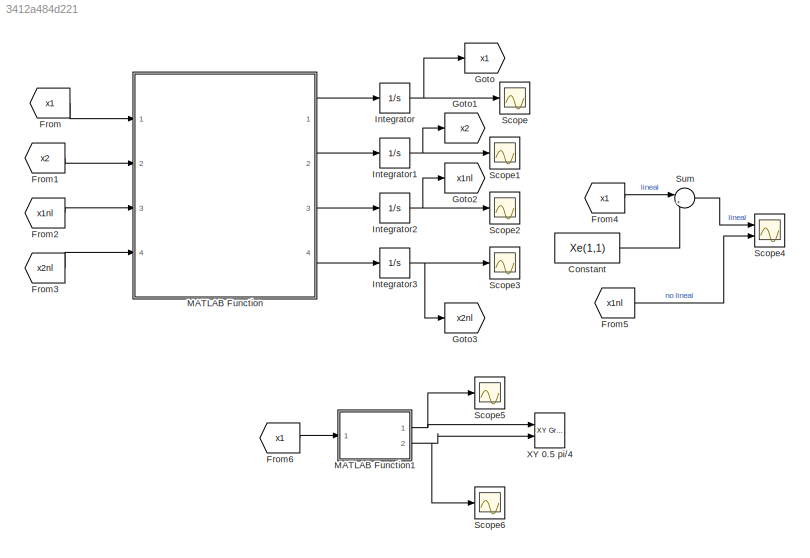
MODEL slx_3412a484d221
KIND model
CONFIG AbsTol = auto
CONFIG EnableMultiTasking = off
CONFIG FixedStep = auto
CONFIG InitFcn = simulacion
CONFIG MaxStep = 1e-2
CONFIG MinStep = auto
CONFIG RelTol = 1e-3
CONFIG SampleTimeConstraint = Unconstrained
CONFIG Solver = VariableStepAuto
CONFIG SolverName = VariableStepAuto
CONFIG StartTime = 0.0
CONFIG StopTime = 4
BLOCK [Constant] Constant
  Value = Xe(1,1)
BLOCK [From] From
  GotoTag = x1
BLOCK [From] From1
  GotoTag = x2
BLOCK [From] From2
  GotoTag = x1nl
BLOCK [From] From3
  GotoTag = x2nl
BLOCK [From] From4
  GotoTag = x1
BLOCK [From] From5
  GotoTag = x1nl
BLOCK [From] From6
  GotoTag = x1
BLOCK [Goto] Goto
  GotoTag = x1
BLOCK [Goto] Goto1
  GotoTag = x2
BLOCK [Goto] Goto2
  GotoTag = x1nl
BLOCK [Goto] Goto3
  GotoTag = x2nl
BLOCK [Integrator] Integrator
  InitialCondition = Xinil(1,1)
  Ports = [1, 1]
BLOCK [Integrator] Integrator1
  InitialCondition = Xinil(1,2)
  Ports = [1, 1]
BLOCK [Integrator] Integrator2
  InitialCondition = Xini(1,1)
  Ports = [1, 1]
BLOCK [Integrator] Integrator3
  InitialCondition = Xini(1,2)
  Ports = [1, 1]
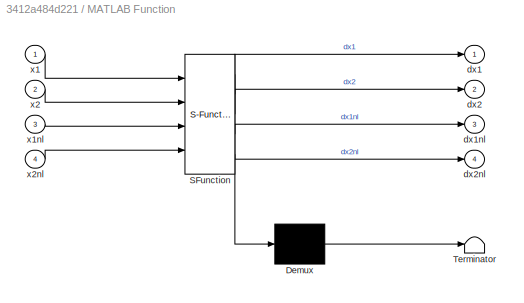
BLOCK [SubSystem] MATLAB Function
  ErrorFcn = Stateflow.Translate.translate
  PermitHierarchicalResolution = ExplicitOnly
  Ports = [4, 4]
  RequestExecContextInheritance = off
  SFBlockType = MATLAB Function
  TreatAsAtomicUnit = on
BLOCK [Demux] MATLAB Function/ Demux 
  Outputs = 1
  Ports = [1, 1]
BLOCK [S-Function] MATLAB Function/ SFunction 
  EnableBusSupport = on
  FunctionName = sf_sfun
  PortCounts = [4 5]
  Ports = [4, 5]
  SFcnIsStateOwnerBlock = off
  SFunctionDeploymentMode = off
  Tag = Stateflow S-Function ejemplo_pendulo 2
BLOCK [Terminator] MATLAB Function/ Terminator 
BLOCK [Outport] MATLAB Function/dx1
  IconDisplay = Port number
BLOCK [Outport] MATLAB Function/dx1nl
  IconDisplay = Port number
  Port = 3
BLOCK [Outport] MATLAB Function/dx2
  IconDisplay = Port number
  Port = 2
BLOCK [Outport] MATLAB Function/dx2nl
  IconDisplay = Port number
  Port = 4
BLOCK [Inport] MATLAB Function/x1
  IconDisplay = Port number
BLOCK [Inport] MATLAB Function/x1nl
  IconDisplay = Port number
  Port = 3
BLOCK [Inport] MATLAB Function/x2
  IconDisplay = Port number
  Port = 2
BLOCK [Inport] MATLAB Function/x2nl
  IconDisplay = Port number
  Port = 4
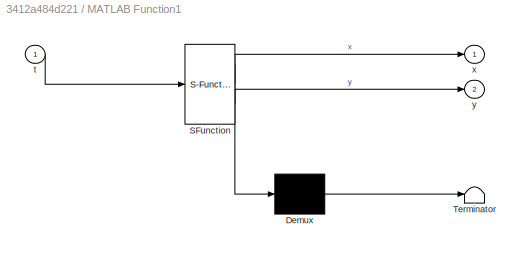
BLOCK [SubSystem] MATLAB Function1
  ErrorFcn = Stateflow.Translate.translate
  PermitHierarchicalResolution = ExplicitOnly
  Ports = [1, 2]
  RequestExecContextInheritance = off
  SFBlockType = MATLAB Function
  TreatAsAtomicUnit = on
BLOCK [Demux] MATLAB Function1/ Demux 
  Outputs = 1
  Ports = [1, 1]
BLOCK [S-Function] MATLAB Function1/ SFunction 
  EnableBusSupport = on
  FunctionName = sf_sfun
  PortCounts = [1 3]
  Ports = [1, 3]
  SFcnIsStateOwnerBlock = off
  SFunctionDeploymentMode = off
  Tag = Stateflow S-Function ejemplo_pendulo 1
BLOCK [Terminator] MATLAB Function1/ Terminator 
BLOCK [Inport] MATLAB Function1/t
  IconDisplay = Port number
BLOCK [Outport] MATLAB Function1/x
  IconDisplay = Port number
BLOCK [Outport] MATLAB Function1/y
  IconDisplay = Port number
  Port = 2
BLOCK [Scope] Scope
  Floating = off
  NumInputPorts = 1
  Ports = [1]
  ScopeSpecificationString = Simulink.scopes.TimeScopeBlockCfg('CurrentConfiguration', extmgr.ConfigurationSet(extmgr.Configuration('Core','General UI',true),extmgr.Configuration('Core','Source UI',true),extmgr.Configuration('Sources','WiredSimulink',true),extmgr.Configuration('Visuals','Time Domain',true,'SerializedDisplays',{struct('MinYLimReal','-0.49085','MaxYLimReal','0.49086','YLabelReal','','MinYLimMag','0.00000','MaxY...<+1386ch>
BLOCK [Scope] Scope1
  Floating = off
  NumInputPorts = 1
  Ports = [1]
  ScopeSpecificationString = Simulink.scopes.TimeScopeBlockCfg('CurrentConfiguration', extmgr.ConfigurationSet(extmgr.Configuration('Core','General UI',true),extmgr.Configuration('Core','Source UI',true),extmgr.Configuration('Sources','WiredSimulink',true,'DataLoggingVariableName','ScopeData1'),extmgr.Configuration('Visuals','Time Domain',true,'SerializedDisplays',{struct('MinYLimReal','-1.53659','MaxYLimReal','1.53655','YLab...<+1370ch>
BLOCK [Scope] Scope2
  Floating = off
  NumInputPorts = 1
  Ports = [1]
  ScopeSpecificationString = Simulink.scopes.TimeScopeBlockCfg('CurrentConfiguration', extmgr.ConfigurationSet(extmgr.Configuration('Core','General UI',true),extmgr.Configuration('Core','Source UI',true),extmgr.Configuration('Sources','WiredSimulink',true,'DataLoggingVariableName','ScopeData2'),extmgr.Configuration('Visuals','Time Domain',true,'SerializedDisplays',{struct('MinYLimReal','-0.4906','MaxYLimReal','0.49084','YLabe...<+1401ch>
BLOCK [Scope] Scope3
  Floating = off
  NumInputPorts = 1
  Ports = [1]
  ScopeSpecificationString = Simulink.scopes.TimeScopeBlockCfg('CurrentConfiguration', extmgr.ConfigurationSet(extmgr.Configuration('Core','General UI',true),extmgr.Configuration('Core','Source UI',true),extmgr.Configuration('Sources','WiredSimulink',true,'DataLoggingVariableName','ScopeData3'),extmgr.Configuration('Visuals','Time Domain',true,'SerializedDisplays',{struct('MinYLimReal','-0.03892','MaxYLimReal','0.03911','YLab...<+1403ch>
BLOCK [Scope] Scope4
  Floating = off
  NumInputPorts = 2
  Ports = [2]
  ScopeSpecificationString = Simulink.scopes.TimeScopeBlockCfg('CurrentConfiguration', extmgr.ConfigurationSet(extmgr.Configuration('Core','General UI',true),extmgr.Configuration('Core','Source UI',true),extmgr.Configuration('Sources','WiredSimulink',true,'DataLoggingVariableName','ScopeData1'),extmgr.Configuration('Visuals','Time Domain',true,'SerializedDisplays',{struct('MinYLimReal','-0.0125','MaxYLimReal','0.0125','YLabel...<+1513ch>
BLOCK [Scope] Scope5
  Floating = off
  NumInputPorts = 1
  Ports = [1]
  ScopeSpecificationString = Simulink.scopes.TimeScopeBlockCfg('CurrentConfiguration', extmgr.ConfigurationSet(extmgr.Configuration('Core','General UI',true),extmgr.Configuration('Core','Source UI',true),extmgr.Configuration('Sources','WiredSimulink',true,'DataLoggingVariableName','ScopeData1'),extmgr.Configuration('Visuals','Time Domain',true,'SerializedDisplays',{struct('MinYLimReal','-0.47833','MaxYLimReal','0.47834','YLab...<+1435ch>
BLOCK [Scope] Scope6
  Floating = off
  NumInputPorts = 1
  Ports = [1]
  ScopeSpecificationString = Simulink.scopes.TimeScopeBlockCfg('CurrentConfiguration', extmgr.ConfigurationSet(extmgr.Configuration('Core','General UI',true),extmgr.Configuration('Core','Source UI',true),extmgr.Configuration('Sources','WiredSimulink',true,'DataLoggingVariableName','ScopeData2'),extmgr.Configuration('Visuals','Time Domain',true,'SerializedDisplays',{struct('MinYLimReal','-1.00951','MaxYLimReal','-0.91437','YLa...<+1437ch>
BLOCK [Sum] Sum
  IconShape = round
  InputSameDT = off
  Inputs = |++
  OutDataTypeStr = Inherit: Inherit via internal rule
  Ports = [2, 1]
  SaturateOnIntegerOverflow = off
BLOCK [Reference] XY 0.5 pi//4  REF=simulink/Sinks/XY Graph
  Ports = [2]
  SourceBlock = simulink/Sinks/XY Graph
  SourceProductBaseCode = SL
  SourceProductName = Simulink
  SourceType = XY scope.
LINE Constant:1 -> Sum:2
LINE From1:1 -> MATLAB Function:2
LINE From2:1 -> MATLAB Function:3
LINE From3:1 -> MATLAB Function:4
LINE From4:1 -> Sum:1
LINE From5:1 -> Scope4:2
LINE From6:1 -> MATLAB Function1:1
LINE From:1 -> MATLAB Function:1
NET Integrator1:1 -> Goto1:1, Scope1:1
NET Integrator2:1 -> Goto2:1, Scope2:1
NET Integrator3:1 -> Goto3:1, Scope3:1
NET Integrator:1 -> Goto:1, Scope:1
NET MATLAB Function1:1 -> Scope5:1, XY 0.5 pi//4:1
NET MATLAB Function1:2 -> Scope6:1, XY 0.5 pi//4:2
LINE MATLAB Function:1 -> Integrator:1
LINE MATLAB Function:2 -> Integrator1:1
LINE MATLAB Function:3 -> Integrator2:1
LINE MATLAB Function:4 -> Integrator3:1
LINE Sum:1 -> Scope4:1
note: NET lines group one-source signal fan-out (src -> all destinations, sorted); 1:1 wires keep LINE
CHART MATLAB Function1 states=1 transitions=1
  STATE_LABEL 'eML_blk_kernel()'
  STATE_LABEL 'SCRIPT:\nfunction [x,y] = fcn(t)\nL=1;\nx = L*sin(t);\ny=-L*cos(t);\n'
CHART MATLAB Function states=1 transitions=1
  STATE_LABEL 'eML_blk_kernel()'
  STATE_LABEL 'SCRIPT:\nfunction [dx1,dx2,dx1nl,dx2nl] = fcn(x1,x2,x1nl,x2nl)\nx1e=0; %pi,2pi,3pi 0,261799 rad=15°\nx2e=0;\ng=9.8;\nL=1;\n\ndx1=x2;\ndx2=(-g/L)*cos(x1e)*x1;\n\ndx1nl=x2nl;\ndx2nl=(-g/L)*sin(x1nl);\n'
